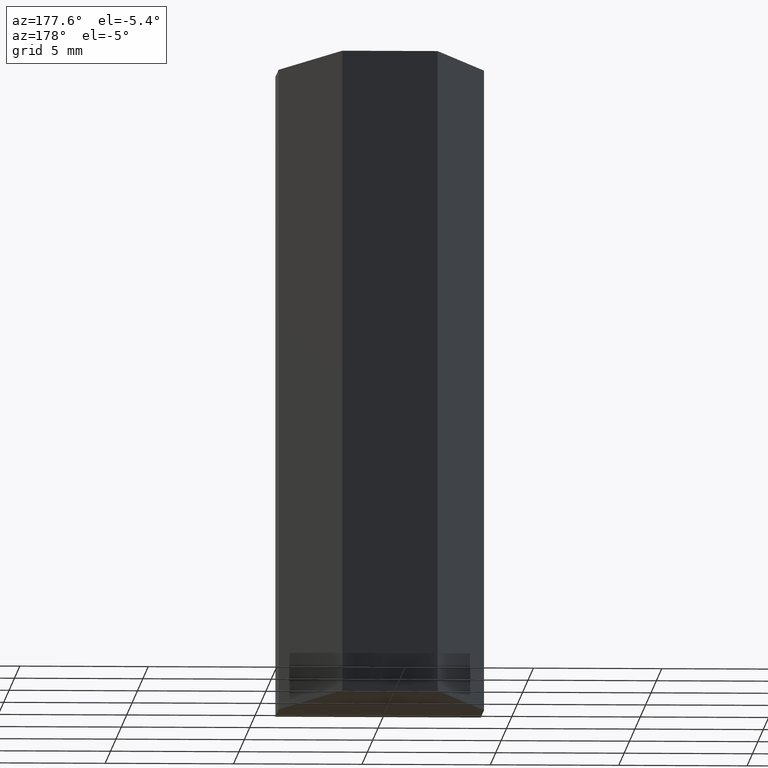
[diagram: clean part render]
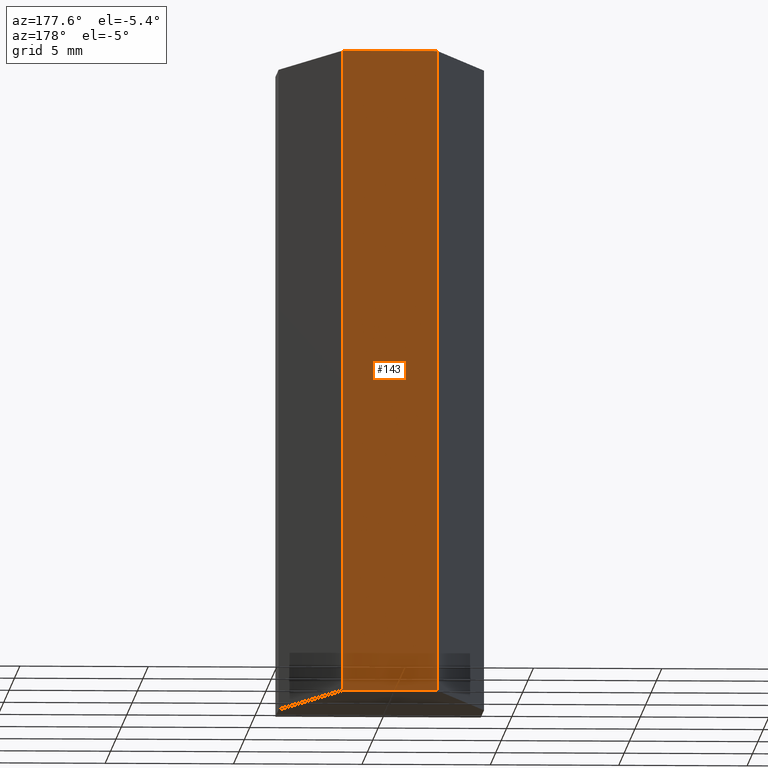
[diagram: same view with one face highlighted and labeled with its STEP entity id]
A machine part, auxiliary view. The second image highlights one B-rep face of the part: STEP entity #143.
In plain terms, the highlighted planar face has unit normal (0, 1, 0).
Its self-contained STEP definition (entity closure, byte-faithful):
#17=FACE_OUTER_BOUND('',#25,.T.);
#25=EDGE_LOOP('',(#104,#105,#106,#107));
#33=LINE('',#223,#51);
#38=LINE('',#234,#56);
#39=LINE('',#235,#57);
#40=LINE('',#236,#58);
#51=VECTOR('',#186,10.);
#56=VECTOR('',#193,10.);
#57=VECTOR('',#194,10.);
#58=VECTOR('',#195,10.);
#68=VERTEX_POINT('',#219);
#70=VERTEX_POINT('',#222);
#74=VERTEX_POINT('',#232);
#75=VERTEX_POINT('',#233);
#81=EDGE_CURVE('',#70,#68,#33,.T.);
#86=EDGE_CURVE('',#74,#75,#38,.T.);
#87=EDGE_CURVE('',#70,#75,#39,.T.);
#88=EDGE_CURVE('',#68,#74,#40,.T.);
#104=ORIENTED_EDGE('',*,*,#86,.T.);
#105=ORIENTED_EDGE('',*,*,#87,.F.);
#106=ORIENTED_EDGE('',*,*,#81,.T.);
#107=ORIENTED_EDGE('',*,*,#88,.T.);
#135=PLANE('',#174);
#143=ADVANCED_FACE('',(#17),#135,.T.);
#174=AXIS2_PLACEMENT_3D('',#231,#191,#192);
#186=DIRECTION('',(-1.,0.,0.));
#191=DIRECTION('center_axis',(0.,1.,0.));
#192=DIRECTION('ref_axis',(0.,0.,1.));
#193=DIRECTION('',(1.,0.,0.));
#194=DIRECTION('',(0.,0.,1.));
#195=DIRECTION('',(0.,0.,1.));
#219=CARTESIAN_POINT('',(-1.85640646055102,11.,-12.5));
#222=CARTESIAN_POINT('',(1.85640646055102,11.,-12.5));
#223=CARTESIAN_POINT('',(0.,11.,-12.5));
#231=CARTESIAN_POINT('Origin',(0.,11.,0.));
#232=CARTESIAN_POINT('',(-1.85640646055102,11.,12.5));
#233=CARTESIAN_POINT('',(1.85640646055102,11.,12.5));
#234=CARTESIAN_POINT('',(1.85640646055102,11.,12.5));
#235=CARTESIAN_POINT('',(1.85640646055102,11.,0.));
#236=CARTESIAN_POINT('',(-1.85640646055102,11.,0.));